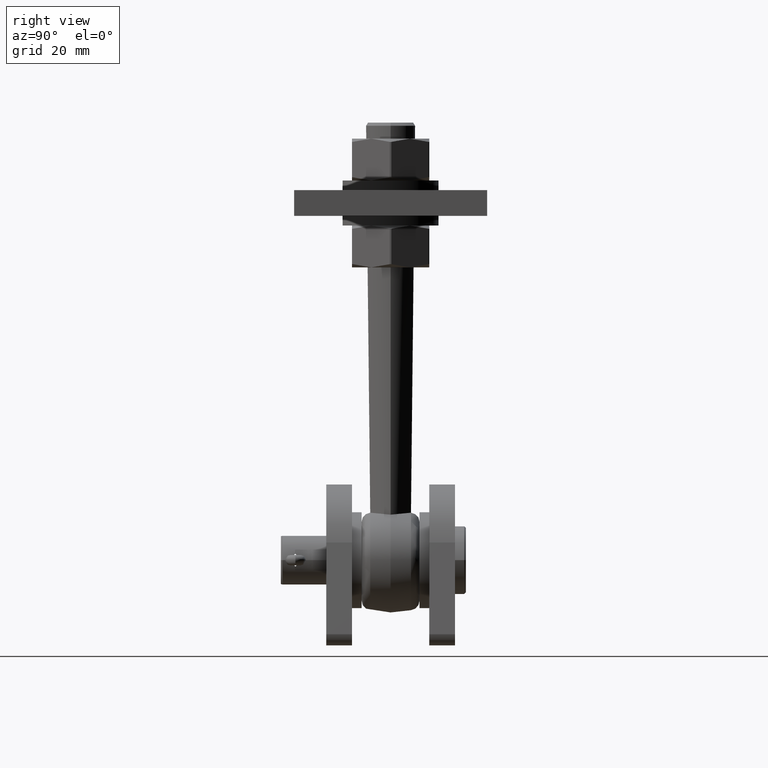
[diagram: clean part render]
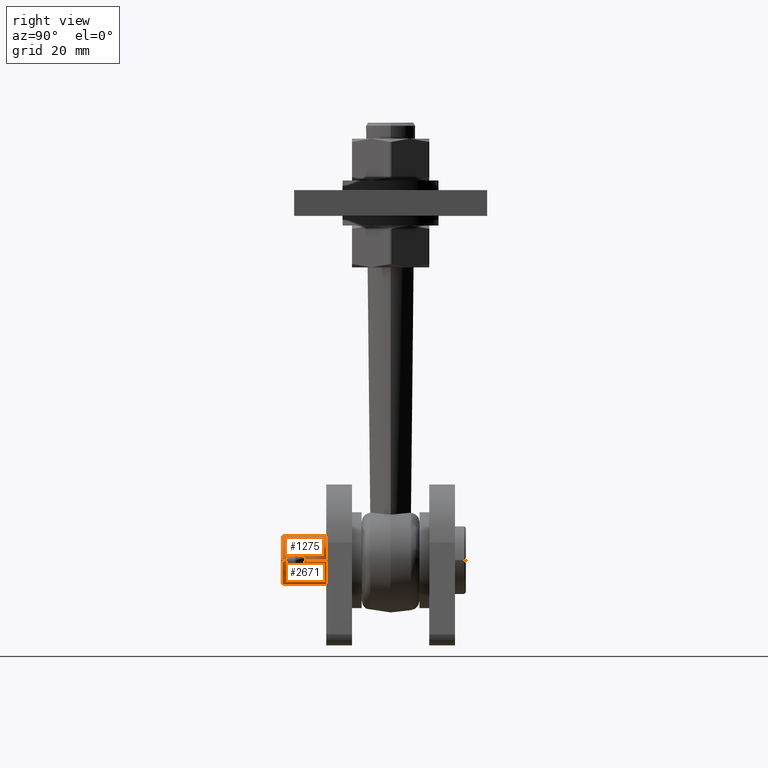
[diagram: same view with one multi-face feature highlighted, each face labeled with its STEP entity id]
A machine part, right view. The highlighted faces form ONE feature: a constant-radius fillet chain: 2 tangent blend faces with common blend radius 7.95 mm. The faces share edges in the B-rep.
Their STEP definitions:
[1] entity #2671 (Cylinder):
#225 = B_SPLINE_CURVE_WITH_KNOTS ( 'NONE', 3,
 ( #7395, #12804, #10145, #15399, #10084, #7621, #16836, #8911, #10022, #2149, #4853, #8731, #11425, #3618, #7509, #975 ),
 .UNSPECIFIED., .F., .F.,
 ( 4, 2, 2, 2, 2, 2, 2, 4 ),
 ( 0.000000000000000000, 0.0003924877562753158753, 0.0007849755125506317505, 0.001177463268825947734, 0.001569951025101263501, 0.002354926537651896336, 0.002747414293927212536, 0.003139902050202529171 ),
 .UNSPECIFIED. ) ;
#290 = EDGE_CURVE ( 'NONE', #7963, #8207, #2308, .T. ) ;
#509 = CARTESIAN_POINT ( 'NONE',  ( -7.924562263214649072, 51.10300705417512290, -0.6469902090679084949 ) ) ;
#712 = VECTOR ( 'NONE', #5024, 1000.000000000000000 ) ;
#793 = CARTESIAN_POINT ( 'NONE',  ( -6.155181303540645707E-17, 3.399999999999986144, 0.000000000000000000 ) ) ;
#975 = CARTESIAN_POINT ( 'NONE',  ( 7.949999999999996625, 50.99999999999999289, 9.735942011271064583E-16 ) ) ;
#989 = CARTESIAN_POINT ( 'NONE',  ( -7.924652939465393509, 54.89736543780418998, -0.6458169674437546082 ) ) ;
#1361 = CIRCLE ( 'NONE', #3256, 7.949999999999998401 ) ;
#1451 = EDGE_CURVE ( 'NONE', #16601, #11361, #9019, .T. ) ;
#1811 = CARTESIAN_POINT ( 'NONE',  ( -7.789854683842819760, 51.77035370459633867, -1.598591673012550451 ) ) ;
#2149 = CARTESIAN_POINT ( 'NONE',  ( 7.856525745292255003, 51.40152417780861072, -1.229794777435625930 ) ) ;
#2221 = CARTESIAN_POINT ( 'NONE',  ( -7.694316083967438047, 53.13101008473957165, -2.000000000000000000 ) ) ;
#2299 = EDGE_CURVE ( 'NONE', #5688, #7342, #7743, .T. ) ;
#2308 = LINE ( 'NONE', #9807, #9833 ) ;
#2323 = CYLINDRICAL_SURFACE ( 'NONE', #12148, 7.949999999999998401 ) ;
#2574 = CARTESIAN_POINT ( 'NONE',  ( -7.950000000000000178, 56.99999999999999289, 4.781931009508440246E-45 ) ) ;
#2671 = ADVANCED_FACE ( 'NONE', ( #9450 ), #2323, .T. ) ;
#2778 = CARTESIAN_POINT ( 'NONE',  ( -7.950000000000000178, 57.49999999999999289, 0.000000000000000000 ) ) ;
#2797 = CIRCLE ( 'NONE', #16717, 7.949999999999998401 ) ;
#2925 = EDGE_CURVE ( 'NONE', #9834, #8207, #225, .T. ) ;
#3142 = CARTESIAN_POINT ( 'NONE',  ( -7.756275060307692648, 51.99272894526373534, -1.747350824639221090 ) ) ;
#3198 = CARTESIAN_POINT ( 'NONE',  ( 7.694316083967436271, 52.99999999999999289, -2.000000000000000000 ) ) ;
#3256 = AXIS2_PLACEMENT_3D ( 'NONE', #793, #16541, #5996 ) ;
#3578 = CARTESIAN_POINT ( 'NONE',  ( -7.887057119366368774, 54.73440801061883576, -1.004364273485758963 ) ) ;
#3618 = CARTESIAN_POINT ( 'NONE',  ( 7.946759577746048464, 51.01276329415418331, -0.2612694808737476282 ) ) ;
#3668 = ORIENTED_EDGE ( 'NONE', *, *, #8885, .T. ) ;
#3796 = CARTESIAN_POINT ( 'NONE',  ( -7.840053064387095816, 54.50738857282056671, -1.320958535354597396 ) ) ;
#4200 = DIRECTION ( 'NONE',  ( -1.810347442217834798E-17, 1.000000000000000000, -1.751623080406021339E-46 ) ) ;
#4386 = CARTESIAN_POINT ( 'NONE',  ( -7.934038809997753461, 51.06426070710008247, -0.5196230671490993380 ) ) ;
#4564 = EDGE_CURVE ( 'NONE', #5688, #9834, #11043, .T. ) ;
#4853 = CARTESIAN_POINT ( 'NONE',  ( 7.889620371743871985, 51.25270485879534732, -1.007379851174479368 ) ) ;
#5024 = DIRECTION ( 'NONE',  ( -1.810347442217834798E-17, 1.000000000000000000, -1.751623080406021339E-46 ) ) ;
#5032 = EDGE_CURVE ( 'NONE', #11361, #11368, #14027, .T. ) ;
#5090 = CARTESIAN_POINT ( 'NONE',  ( -7.950000000000000178, 54.99999999999999289, 2.113235302785876149E-21 ) ) ;
#5215 = CARTESIAN_POINT ( 'NONE',  ( 7.694316083967436271, 52.99999999999999289, -2.000000000000000000 ) ) ;
#5390 = CARTESIAN_POINT ( 'NONE',  ( 7.697747731779690739, 53.26338999103940353, -1.986928966165530719 ) ) ;
#5688 = VERTEX_POINT ( 'NONE', #8208 ) ;
#5741 = CARTESIAN_POINT ( 'NONE',  ( -7.856474091491604916, 51.41043274181383538, -1.220790165378973002 ) ) ;
#5792 = CARTESIAN_POINT ( 'NONE',  ( -7.950000000000000178, 50.99999999999999289, 2.033804946921594182E-32 ) ) ;
#5850 = ORIENTED_EDGE ( 'NONE', *, *, #2925, .T. ) ;
#5956 = CARTESIAN_POINT ( 'NONE',  ( -7.901070480466282575, 51.20366765039445767, -0.8890268032515739050 ) ) ;
#5996 = DIRECTION ( 'NONE',  ( -1.000000000000000000, 0.000000000000000000, 0.000000000000000000 ) ) ;
#6302 = CARTESIAN_POINT ( 'NONE',  ( -7.694316083967438047, 52.99999999999999289, -2.000000000000000000 ) ) ;
#6591 = CARTESIAN_POINT ( 'NONE',  ( 7.949999999999996625, 54.99999999999999289, 9.970668762862890007E-16 ) ) ;
#7129 = CARTESIAN_POINT ( 'NONE',  ( -7.946679383968100474, 51.01308580882071197, -0.2631857497670406221 ) ) ;
#7298 = ORIENTED_EDGE ( 'NONE', *, *, #5032, .T. ) ;
#7342 = VERTEX_POINT ( 'NONE', #16225 ) ;
#7343 = CARTESIAN_POINT ( 'NONE',  ( -7.694316083967438047, 52.99999999999999289, -2.000000000000000000 ) ) ;
#7395 = CARTESIAN_POINT ( 'NONE',  ( 7.694316083967436271, 52.99999999999999289, -2.000000000000000000 ) ) ;
#7509 = CARTESIAN_POINT ( 'NONE',  ( 7.949999999999998401, 51.00000000000000000, -0.1310877583516862066 ) ) ;
#7583 = CARTESIAN_POINT ( 'NONE',  ( -7.933949495009511743, 54.93537538977241041, -0.5211252135628732240 ) ) ;
#7621 = CARTESIAN_POINT ( 'NONE',  ( 7.744560864505316111, 52.11105754919763200, -1.796372218728887304 ) ) ;
#7638 = CARTESIAN_POINT ( 'NONE',  ( -7.697779523048308370, 53.26412105849664158, -1.986804987694983593 ) ) ;
#7743 = LINE ( 'NONE', #13028, #712 ) ;
#7821 = CARTESIAN_POINT ( 'NONE',  ( 7.856457370671384943, 54.59811386517233700, -1.230190434756748274 ) ) ;
#7867 = CARTESIAN_POINT ( 'NONE',  ( 7.720662977664924043, 53.64843706785656963, -1.896448257276839522 ) ) ;
#7928 = CARTESIAN_POINT ( 'NONE',  ( 7.949999999999996625, 55.00000000000000711, -0.1318761416938723785 ) ) ;
#7963 = VERTEX_POINT ( 'NONE', #14231 ) ;
#7981 = CARTESIAN_POINT ( 'NONE',  ( 7.756548665258978126, 54.00939707829432024, -1.746156932330575229 ) ) ;
#8185 = CARTESIAN_POINT ( 'NONE',  ( 7.949999999999996625, 50.99999999999999289, 9.735942011271064583E-16 ) ) ;
#8207 = VERTEX_POINT ( 'NONE', #8185 ) ;
#8208 = CARTESIAN_POINT ( 'NONE',  ( 7.949999999999996625, 54.99999999999999289, 9.970668762862890007E-16 ) ) ;
#8662 = EDGE_CURVE ( 'NONE', #11368, #7342, #2797, .T. ) ;
#8731 = CARTESIAN_POINT ( 'NONE',  ( 7.924590656622680029, 51.10289832900503626, -0.6465051188239416824 ) ) ;
#8751 = VECTOR ( 'NONE', #17005, 1000.000000000000000 ) ;
#8885 = EDGE_CURVE ( 'NONE', #7963, #12870, #1361, .T. ) ;
#8911 = CARTESIAN_POINT ( 'NONE',  ( 7.789801119753567704, 51.77932916537322683, -1.589657593870339003 ) ) ;
#9019 = B_SPLINE_CURVE_WITH_KNOTS ( 'NONE', 3,
 ( #6302, #2221, #7638, #14419, #14199, #16913, #16973, #3796, #11553, #3578, #12876, #989, #7583, #13037, #16857, #5090 ),
 .UNSPECIFIED., .F., .F.,
 ( 4, 2, 2, 2, 2, 2, 2, 4 ),
 ( 0.003139949354440633479, 0.003532233271773319201, 0.003924517189106004923, 0.004709085023771358153, 0.005101368941104034334, 0.005493652858436710515, 0.005885936775769387563, 0.006278220693102063744 ),
 .UNSPECIFIED. ) ;
#9032 = VERTEX_POINT ( 'NONE', #10467 ) ;
#9353 = CARTESIAN_POINT ( 'NONE',  ( 7.946721702098886730, 54.98708314764281369, -0.2620080763964702797 ) ) ;
#9450 = FACE_OUTER_BOUND ( 'NONE', #12408, .T. ) ;
#9721 = ORIENTED_EDGE ( 'NONE', *, *, #4564, .T. ) ;
#9807 = CARTESIAN_POINT ( 'NONE',  ( 7.949999999999996625, 57.49999999999999289, 9.735942053221456900E-16 ) ) ;
#9833 = VECTOR ( 'NONE', #15298, 1000.000000000000000 ) ;
#9834 = VERTEX_POINT ( 'NONE', #3198 ) ;
#9857 = CARTESIAN_POINT ( 'NONE',  ( -7.710771477009589425, 52.48022943558717657, -1.935770746015894384 ) ) ;
#9874 = EDGE_CURVE ( 'NONE', #9032, #16601, #9920, .T. ) ;
#9920 = B_SPLINE_CURVE_WITH_KNOTS ( 'NONE', 3,
 ( #5792, #12578, #7129, #4386, #509, #5956, #16555, #5741, #15007, #1811, #3142, #12461, #9857, #11200, #12523, #7343 ),
 .UNSPECIFIED., .F., .F.,
 ( 4, 2, 2, 2, 2, 2, 2, 4 ),
 ( 0.000000000000000000, 0.0003924936693050754986, 0.0007849873386101509972, 0.001177481007915226604, 0.001569974677220301994, 0.002354962015830467954, 0.002747455685135550500, 0.003139949354440633479 ),
 .UNSPECIFIED. ) ;
#10022 = CARTESIAN_POINT ( 'NONE',  ( 7.806704201482631333, 51.67701567228889559, -1.505520675984033829 ) ) ;
#10075 = ORIENTED_EDGE ( 'NONE', *, *, #1451, .T. ) ;
#10084 = CARTESIAN_POINT ( 'NONE',  ( 7.720527735809659120, 52.35305006668411210, -1.897004905856085388 ) ) ;
#10145 = CARTESIAN_POINT ( 'NONE',  ( 7.697750976697985692, 52.73681746508850665, -1.986913910411575390 ) ) ;
#10340 = DIRECTION ( 'NONE',  ( 1.000000000000000000, 0.000000000000000000, 0.000000000000000000 ) ) ;
#10467 = CARTESIAN_POINT ( 'NONE',  ( -7.950000000000000178, 50.99999999999999289, 2.033804946921594182E-32 ) ) ;
#10564 = CARTESIAN_POINT ( 'NONE',  ( 7.934091679746535952, 54.93595568328925793, -0.5188672856166262060 ) ) ;
#10574 = CARTESIAN_POINT ( 'NONE',  ( -7.950000000000000178, 54.99999999999999289, 2.113235302785876149E-21 ) ) ;
#11043 = B_SPLINE_CURVE_WITH_KNOTS ( 'NONE', 3,
 ( #6591, #7928, #9353, #10564, #15159, #13333, #7821, #11850, #7981, #7867, #14608, #5390, #14660, #5215 ),
 .UNSPECIFIED., .F., .F.,
 ( 4, 2, 2, 2, 2, 2, 4 ),
 ( 0.009416982646506867963, 0.009809188363616664491, 0.01020139408072645928, 0.01098580551494604367, 0.01177021694916562805, 0.01216242266627542978, 0.01255462838338523152 ),
 .UNSPECIFIED. ) ;
#11200 = CARTESIAN_POINT ( 'NONE',  ( -7.697667790944767496, 52.73874516518576883, -1.987238217236958926 ) ) ;
#11341 = ORIENTED_EDGE ( 'NONE', *, *, #15504, .T. ) ;
#11361 = VERTEX_POINT ( 'NONE', #10574 ) ;
#11368 = VERTEX_POINT ( 'NONE', #2574 ) ;
#11425 = CARTESIAN_POINT ( 'NONE',  ( 7.934044409353276706, 51.06423590586242511, -0.5197969204840001689 ) ) ;
#11438 = ORIENTED_EDGE ( 'NONE', *, *, #9874, .T. ) ;
#11553 = CARTESIAN_POINT ( 'NONE',  ( -7.856505035837110462, 54.58970831327162898, -1.220551604754334996 ) ) ;
#11850 = CARTESIAN_POINT ( 'NONE',  ( 7.790118874364078572, 54.23125853727104584, -1.597291096269006561 ) ) ;
#12051 = ORIENTED_EDGE ( 'NONE', *, *, #8662, .T. ) ;
#12148 = AXIS2_PLACEMENT_3D ( 'NONE', #13610, #4200, #13439 ) ;
#12376 = CARTESIAN_POINT ( 'NONE',  ( -7.694316083967438047, 52.99999999999999289, -2.000000000000000000 ) ) ;
#12408 = EDGE_LOOP ( 'NONE', ( #14052, #3668, #11341, #11438, #10075, #7298, #12051, #13431, #9721, #5850 ) ) ;
#12461 = CARTESIAN_POINT ( 'NONE',  ( -7.720497554938354767, 52.35354386270315530, -1.897116742077429974 ) ) ;
#12523 = CARTESIAN_POINT ( 'NONE',  ( -7.694316083967436271, 52.86891986491556850, -2.000000000000000000 ) ) ;
#12578 = CARTESIAN_POINT ( 'NONE',  ( -7.950000000000000178, 51.00000000000000000, -0.1327545449306079817 ) ) ;
#12597 = CARTESIAN_POINT ( 'NONE',  ( -7.949999999999998401, 3.399999999999986144, 0.000000000000000000 ) ) ;
#12707 = LINE ( 'NONE', #13016, #8751 ) ;
#12804 = CARTESIAN_POINT ( 'NONE',  ( 7.694316083967430941, 52.86724334183054452, -2.000000000000000444 ) ) ;
#12870 = VERTEX_POINT ( 'NONE', #12597 ) ;
#12876 = CARTESIAN_POINT ( 'NONE',  ( -7.901270187472600348, 54.79720393084362229, -0.8872052699192171099 ) ) ;
#13016 = CARTESIAN_POINT ( 'NONE',  ( -7.950000000000000178, 57.49999999999999289, 0.000000000000000000 ) ) ;
#13028 = CARTESIAN_POINT ( 'NONE',  ( 7.949999999999996625, 57.49999999999999289, 9.735942053221456900E-16 ) ) ;
#13037 = CARTESIAN_POINT ( 'NONE',  ( -7.946676334210183157, 54.98690414229555756, -0.2635551495919991605 ) ) ;
#13251 = DIRECTION ( 'NONE',  ( -1.810347442217834798E-17, 1.000000000000000000, -1.751623080406021339E-46 ) ) ;
#13333 = CARTESIAN_POINT ( 'NONE',  ( 7.889527869177531016, 54.74689289461773711, -1.008245214644405863 ) ) ;
#13431 = ORIENTED_EDGE ( 'NONE', *, *, #2299, .F. ) ;
#13439 = DIRECTION ( 'NONE',  ( -1.000000000000000000, 0.000000000000000000, 0.000000000000000000 ) ) ;
#13610 = CARTESIAN_POINT ( 'NONE',  ( -1.040949779275254084E-15, 57.49999999999999289, 0.000000000000000000 ) ) ;
#14027 = LINE ( 'NONE', #2778, #16712 ) ;
#14052 = ORIENTED_EDGE ( 'NONE', *, *, #290, .F. ) ;
#14199 = CARTESIAN_POINT ( 'NONE',  ( -7.720431359289959161, 53.64586713597551437, -1.897399845491913428 ) ) ;
#14231 = CARTESIAN_POINT ( 'NONE',  ( 7.949999999999998401, 3.399999999999986144, 9.735942053221456900E-16 ) ) ;
#14381 = DIRECTION ( 'NONE',  ( 1.810347442217852054E-17, -1.000000000000000000, 1.751623080406021339E-46 ) ) ;
#14419 = CARTESIAN_POINT ( 'NONE',  ( -7.710866487856367968, 53.52097249603596651, -1.935391859816786964 ) ) ;
#14608 = CARTESIAN_POINT ( 'NONE',  ( 7.710864989283563453, 53.52104992872020262, -1.935398660676406202 ) ) ;
#14660 = CARTESIAN_POINT ( 'NONE',  ( 7.694316083967431830, 53.13266126009273194, -2.000000000000000444 ) ) ;
#15007 = CARTESIAN_POINT ( 'NONE',  ( -7.839679666637016986, 51.49459281933928878, -1.323113962446692105 ) ) ;
#15159 = CARTESIAN_POINT ( 'NONE',  ( 7.924596076609922157, 54.89712787500095459, -0.6464937164614490417 ) ) ;
#15298 = DIRECTION ( 'NONE',  ( -1.810347442217834798E-17, 1.000000000000000000, -1.751623080406021339E-46 ) ) ;
#15399 = CARTESIAN_POINT ( 'NONE',  ( 7.710777413707241124, 52.48040085530727339, -1.935744989120222304 ) ) ;
#15504 = EDGE_CURVE ( 'NONE', #12870, #9032, #12707, .T. ) ;
#16225 = CARTESIAN_POINT ( 'NONE',  ( 7.949999999999996625, 56.99999999999999289, 9.735942053221456900E-16 ) ) ;
#16541 = DIRECTION ( 'NONE',  ( -1.810347442217834798E-17, 1.000000000000000000, -1.751623080406021339E-46 ) ) ;
#16555 = CARTESIAN_POINT ( 'NONE',  ( -7.887143775885049557, 51.26518708227634136, -1.003731456457646276 ) ) ;
#16601 = VERTEX_POINT ( 'NONE', #12376 ) ;
#16712 = VECTOR ( 'NONE', #13251, 1000.000000000000000 ) ;
#16717 = AXIS2_PLACEMENT_3D ( 'NONE', #16987, #14381, #10340 ) ;
#16836 = CARTESIAN_POINT ( 'NONE',  ( 7.758752153202430613, 51.99637119609992197, -1.734871112284767092 ) ) ;
#16857 = CARTESIAN_POINT ( 'NONE',  ( -7.950000000000000178, 55.00000000000000000, -0.1308090633521638846 ) ) ;
#16913 = CARTESIAN_POINT ( 'NONE',  ( -7.756556953633049645, 54.00995629125966246, -1.746158759611766698 ) ) ;
#16973 = CARTESIAN_POINT ( 'NONE',  ( -7.789832132517102714, 54.22969007520354978, -1.598896295990056338 ) ) ;
#16987 = CARTESIAN_POINT ( 'NONE',  ( -1.031898042064167388E-15, 56.99999999999999289, 0.000000000000000000 ) ) ;
#17005 = DIRECTION ( 'NONE',  ( -1.810347442217834798E-17, 1.000000000000000000, -1.751623080406021339E-46 ) ) ;
[2] entity #1275 (Cylinder):
#290 = EDGE_CURVE ( 'NONE', #7963, #8207, #2308, .T. ) ;
#564 = CARTESIAN_POINT ( 'NONE',  ( -7.744590902109325548, 53.88929681845981889, 1.796250426453906979 ) ) ;
#622 = CARTESIAN_POINT ( 'NONE',  ( -7.950000000000000178, 54.99999999999999289, 2.113235302785876149E-21 ) ) ;
#712 = VECTOR ( 'NONE', #5024, 1000.000000000000000 ) ;
#716 = CARTESIAN_POINT ( 'NONE',  ( 7.887092505777772544, 54.73456603172354562, 1.004079766764621295 ) ) ;
#1271 = CARTESIAN_POINT ( 'NONE',  ( -1.031898042064167388E-15, 56.99999999999999289, 0.000000000000000000 ) ) ;
#1275 = ADVANCED_FACE ( 'NONE', ( #16402 ), #3550, .T. ) ;
#1373 = DIRECTION ( 'NONE',  ( 1.000000000000000000, 0.000000000000000000, 0.000000000000000000 ) ) ;
#1662 = CARTESIAN_POINT ( 'NONE',  ( 7.949999999999996625, 50.99999999999997158, 0.1310194815208184926 ) ) ;
#1750 = CARTESIAN_POINT ( 'NONE',  ( -7.887075975185781296, 54.73450639978707954, 1.004263173314736024 ) ) ;
#1803 = CARTESIAN_POINT ( 'NONE',  ( -7.697707530194250580, 52.73798828573675479, 1.987081904661341492 ) ) ;
#1889 = CIRCLE ( 'NONE', #6732, 7.949999999999998401 ) ;
#1998 = CARTESIAN_POINT ( 'NONE',  ( 7.936462486910293102, 54.94797760002165887, 0.5242786486983366245 ) ) ;
#2029 = CARTESIAN_POINT ( 'NONE',  ( -7.933954263415378350, 51.06460502737875373, 0.5210655787700830821 ) ) ;
#2042 = CARTESIAN_POINT ( 'NONE',  ( 7.697754669267080629, 52.73643651551044798, 1.986902030695572918 ) ) ;
#2056 = CARTESIAN_POINT ( 'NONE',  ( 7.839789496499784072, 54.50599868110666790, 1.322489299079199210 ) ) ;
#2174 = CARTESIAN_POINT ( 'NONE',  ( 7.949999999999996625, 54.99999999999999289, 9.970668762862890007E-16 ) ) ;
#2187 = ORIENTED_EDGE ( 'NONE', *, *, #7359, .T. ) ;
#2202 = ORIENTED_EDGE ( 'NONE', *, *, #13396, .T. ) ;
#2299 = EDGE_CURVE ( 'NONE', #5688, #7342, #7743, .T. ) ;
#2308 = LINE ( 'NONE', #9807, #9833 ) ;
#2330 = ORIENTED_EDGE ( 'NONE', *, *, #16637, .T. ) ;
#2557 = DIRECTION ( 'NONE',  ( 1.810347442217852054E-17, -1.000000000000000000, 1.751623080406021339E-46 ) ) ;
#2574 = CARTESIAN_POINT ( 'NONE',  ( -7.950000000000000178, 56.99999999999999289, 4.781931009508440246E-45 ) ) ;
#2778 = CARTESIAN_POINT ( 'NONE',  ( -7.950000000000000178, 57.49999999999999289, 0.000000000000000000 ) ) ;
#3045 = CARTESIAN_POINT ( 'NONE',  ( 7.889347318024901412, 51.25388495265607247, 1.010042887076920692 ) ) ;
#3146 = CARTESIAN_POINT ( 'NONE',  ( 7.924656850531029306, 51.10260959151734284, 0.6458991685022716922 ) ) ;
#3437 = CARTESIAN_POINT ( 'NONE',  ( -7.946682637520201986, 51.01307061334691184, 0.2633906791839861206 ) ) ;
#3462 = CARTESIAN_POINT ( 'NONE',  ( 7.856566816858836511, 54.59001046269535351, 1.220148443819275119 ) ) ;
#3550 = CYLINDRICAL_SURFACE ( 'NONE', #13675, 7.949999999999998401 ) ;
#3579 = ORIENTED_EDGE ( 'NONE', *, *, #13422, .T. ) ;
#3772 = EDGE_LOOP ( 'NONE', ( #15910, #8250, #2187, #2330, #15583, #8771, #15092, #2202, #3579, #12138 ) ) ;
#3859 = CARTESIAN_POINT ( 'NONE',  ( -7.694316083967436271, 52.99999999999999289, 2.000000000000003553 ) ) ;
#4393 = CARTESIAN_POINT ( 'NONE',  ( 7.806330506094356636, 51.67916635260444025, 1.507498826016771210 ) ) ;
#4434 = CARTESIAN_POINT ( 'NONE',  ( -7.856394206136461555, 54.58917429338763583, 1.221303417425163351 ) ) ;
#4450 = CARTESIAN_POINT ( 'NONE',  ( 7.949999999999996625, 50.99999999999999289, 9.735942011271064583E-16 ) ) ;
#4485 = CARTESIAN_POINT ( 'NONE',  ( -7.936281013652445537, 54.94718115219279042, 0.5258676678215030709 ) ) ;
#4540 = CARTESIAN_POINT ( 'NONE',  ( -7.694316083967436271, 52.99999999999999289, 2.000000000000003553 ) ) ;
#4603 = CARTESIAN_POINT ( 'NONE',  ( -7.756372067627395950, 51.99184264170494174, 1.746937719133370814 ) ) ;
#4633 = CARTESIAN_POINT ( 'NONE',  ( 7.744368394661253596, 53.88719080215257407, 1.797192405122824521 ) ) ;
#4662 = CARTESIAN_POINT ( 'NONE',  ( -7.950000000000000178, 50.99999999999999289, 2.033804946921594182E-32 ) ) ;
#4783 = CARTESIAN_POINT ( 'NONE',  ( -7.950000000000001954, 50.99999999999998579, 0.1326576613441784458 ) ) ;
#5024 = DIRECTION ( 'NONE',  ( -1.810347442217834798E-17, 1.000000000000000000, -1.751623080406021339E-46 ) ) ;
#5032 = EDGE_CURVE ( 'NONE', #11361, #11368, #14027, .T. ) ;
#5049 = DIRECTION ( 'NONE',  ( -1.810347442217834798E-17, 1.000000000000000000, -1.751623080406021339E-46 ) ) ;
#5502 = B_SPLINE_CURVE_WITH_KNOTS ( 'NONE', 3,
 ( #622, #13664, #4485, #5840, #1750, #4434, #16428, #5951, #13783, #8499, #564, #7123, #12516, #4540 ),
 .UNSPECIFIED., .F., .F.,
 ( 4, 2, 2, 2, 2, 2, 4 ),
 ( 0.006278220693102063744, 0.007062938076252375449, 0.007455296767827530868, 0.007847655459402688022, 0.008240014150977843441, 0.008632372842553000594, 0.009417090225703313167 ),
 .UNSPECIFIED. ) ;
#5688 = VERTEX_POINT ( 'NONE', #8208 ) ;
#5747 = CARTESIAN_POINT ( 'NONE',  ( 7.789768463635916795, 51.77957567417433893, 1.589804492314852880 ) ) ;
#5796 = CARTESIAN_POINT ( 'NONE',  ( 7.720434315983274232, 52.35422511576941673, 1.897378144461590033 ) ) ;
#5840 = CARTESIAN_POINT ( 'NONE',  ( -7.901259962995902164, 54.79715706903729711, 0.8872650562757913306 ) ) ;
#5951 = CARTESIAN_POINT ( 'NONE',  ( -7.806594591758594603, 54.32236212794126828, 1.506110057461228724 ) ) ;
#6018 = VERTEX_POINT ( 'NONE', #12912 ) ;
#6130 = CARTESIAN_POINT ( 'NONE',  ( 7.694316083967435382, 52.86919250298892337, 2.000000000000003109 ) ) ;
#6732 = AXIS2_PLACEMENT_3D ( 'NONE', #1271, #2557, #1373 ) ;
#7080 = CARTESIAN_POINT ( 'NONE',  ( 7.758839563100941916, 51.99574197341976145, 1.734468124498323549 ) ) ;
#7123 = CARTESIAN_POINT ( 'NONE',  ( -7.708352393146889803, 53.52425087323373987, 1.947978112132702666 ) ) ;
#7305 = CARTESIAN_POINT ( 'NONE',  ( 7.758822143950365735, 54.00416771873706523, 1.734559664370985299 ) ) ;
#7342 = VERTEX_POINT ( 'NONE', #16225 ) ;
#7359 = EDGE_CURVE ( 'NONE', #8207, #6018, #12822, .T. ) ;
#7743 = LINE ( 'NONE', #13028, #712 ) ;
#7748 = AXIS2_PLACEMENT_3D ( 'NONE', #11625, #5049, #14319 ) ;
#7963 = VERTEX_POINT ( 'NONE', #14231 ) ;
#8185 = CARTESIAN_POINT ( 'NONE',  ( 7.949999999999996625, 50.99999999999999289, 9.735942011271064583E-16 ) ) ;
#8207 = VERTEX_POINT ( 'NONE', #8185 ) ;
#8208 = CARTESIAN_POINT ( 'NONE',  ( 7.949999999999996625, 54.99999999999999289, 9.970668762862890007E-16 ) ) ;
#8250 = ORIENTED_EDGE ( 'NONE', *, *, #290, .T. ) ;
#8404 = CARTESIAN_POINT ( 'NONE',  ( 7.744357194706142700, 52.11287682203219873, 1.797242746903105592 ) ) ;
#8499 = CARTESIAN_POINT ( 'NONE',  ( -7.758802861610893054, 54.00396850425526907, 1.734629232997739967 ) ) ;
#8643 = CARTESIAN_POINT ( 'NONE',  ( 7.806446714378374452, 54.32149270996688273, 1.506873249871536036 ) ) ;
#8751 = VECTOR ( 'NONE', #17005, 1000.000000000000000 ) ;
#8771 = ORIENTED_EDGE ( 'NONE', *, *, #9574, .T. ) ;
#9032 = VERTEX_POINT ( 'NONE', #10467 ) ;
#9574 = EDGE_CURVE ( 'NONE', #7342, #11368, #1889, .T. ) ;
#9671 = VERTEX_POINT ( 'NONE', #3859 ) ;
#9792 = CARTESIAN_POINT ( 'NONE',  ( -7.694316083967436271, 52.99999999999999289, 2.000000000000003553 ) ) ;
#9807 = CARTESIAN_POINT ( 'NONE',  ( 7.949999999999996625, 57.49999999999999289, 9.735942053221456900E-16 ) ) ;
#9833 = VECTOR ( 'NONE', #15298, 1000.000000000000000 ) ;
#9906 = CARTESIAN_POINT ( 'NONE',  ( -7.694316083967433606, 52.86811699481697957, 2.000000000000002220 ) ) ;
#10168 = CARTESIAN_POINT ( 'NONE',  ( 7.789880191863094439, 54.22117367703371826, 1.589271810338418689 ) ) ;
#10467 = CARTESIAN_POINT ( 'NONE',  ( -7.950000000000000178, 50.99999999999999289, 2.033804946921594182E-32 ) ) ;
#10574 = CARTESIAN_POINT ( 'NONE',  ( -7.950000000000000178, 54.99999999999999289, 2.113235302785876149E-21 ) ) ;
#10980 = CARTESIAN_POINT ( 'NONE',  ( 7.933952605931474444, 51.06461255670861732, 0.5209900431290097611 ) ) ;
#11039 = CARTESIAN_POINT ( 'NONE',  ( 7.946651489141573599, 51.01319590991990083, 0.2641300594980733329 ) ) ;
#11141 = CARTESIAN_POINT ( 'NONE',  ( -7.720492980538239181, 52.35354407385830200, 1.897139398926747766 ) ) ;
#11361 = VERTEX_POINT ( 'NONE', #10574 ) ;
#11368 = VERTEX_POINT ( 'NONE', #2574 ) ;
#11373 = CARTESIAN_POINT ( 'NONE',  ( -7.924430728953867131, 51.10356211025687401, 0.6484721958710593093 ) ) ;
#11391 = CARTESIAN_POINT ( 'NONE',  ( -1.040949779275254084E-15, 57.49999999999999289, 0.000000000000000000 ) ) ;
#11454 = CARTESIAN_POINT ( 'NONE',  ( 7.901040225096759073, 54.79620617402625271, 0.8893900091111657247 ) ) ;
#11537 = CIRCLE ( 'NONE', #7748, 7.949999999999998401 ) ;
#11625 = CARTESIAN_POINT ( 'NONE',  ( -6.155181303540645707E-17, 3.399999999999986144, 0.000000000000000000 ) ) ;
#12138 = ORIENTED_EDGE ( 'NONE', *, *, #15504, .F. ) ;
#12172 = B_SPLINE_CURVE_WITH_KNOTS ( 'NONE', 3,
 ( #15368, #12600, #16696, #4633, #7305, #10168, #8643, #2056, #3462, #716, #11454, #1998, #15427, #2174 ),
 .UNSPECIFIED., .F., .F.,
 ( 4, 2, 2, 2, 2, 2, 4 ),
 ( 0.006278168687885049039, 0.007062872177540506155, 0.007455223922368234279, 0.007847575667195964139, 0.008239927412023690528, 0.008632279156851420387, 0.009416982646506867963 ),
 .UNSPECIFIED. ) ;
#12364 = CARTESIAN_POINT ( 'NONE',  ( 7.856556593071495342, 51.40118677920587942, 1.229802107312459203 ) ) ;
#12516 = CARTESIAN_POINT ( 'NONE',  ( -7.694316083967432718, 53.26386787122140731, 2.000000000000002665 ) ) ;
#12518 = EDGE_CURVE ( 'NONE', #12870, #7963, #11537, .T. ) ;
#12574 = CARTESIAN_POINT ( 'NONE',  ( -7.710723360724213826, 52.48115159861475121, 1.935959961007375663 ) ) ;
#12597 = CARTESIAN_POINT ( 'NONE',  ( -7.949999999999998401, 3.399999999999986144, 0.000000000000000000 ) ) ;
#12600 = CARTESIAN_POINT ( 'NONE',  ( 7.694316083967436271, 53.26166062028043768, 2.000000000000002665 ) ) ;
#12707 = LINE ( 'NONE', #13016, #8751 ) ;
#12805 = CARTESIAN_POINT ( 'NONE',  ( -7.789926930447180098, 51.76993648824963401, 1.598210710566971615 ) ) ;
#12822 = B_SPLINE_CURVE_WITH_KNOTS ( 'NONE', 3,
 ( #4450, #1662, #11039, #10980, #3146, #3045, #12364, #4393, #5747, #7080, #8404, #5796, #16497, #2042, #6130, #15179 ),
 .UNSPECIFIED., .F., .F.,
 ( 4, 2, 2, 2, 2, 2, 2, 4 ),
 ( 0.003139902050202529171, 0.003532185379912847895, 0.003924468709623167052, 0.004709035369043804500, 0.005101318698754115852, 0.005493602028464426336, 0.005885885358174737687, 0.006278168687885049039 ),
 .UNSPECIFIED. ) ;
#12870 = VERTEX_POINT ( 'NONE', #12597 ) ;
#12912 = CARTESIAN_POINT ( 'NONE',  ( 7.694316083967434494, 52.99999999999999289, 2.000000000000002665 ) ) ;
#13016 = CARTESIAN_POINT ( 'NONE',  ( -7.950000000000000178, 57.49999999999999289, 0.000000000000000000 ) ) ;
#13028 = CARTESIAN_POINT ( 'NONE',  ( 7.949999999999996625, 57.49999999999999289, 9.735942053221456900E-16 ) ) ;
#13251 = DIRECTION ( 'NONE',  ( -1.810347442217834798E-17, 1.000000000000000000, -1.751623080406021339E-46 ) ) ;
#13396 = EDGE_CURVE ( 'NONE', #11361, #9671, #5502, .T. ) ;
#13422 = EDGE_CURVE ( 'NONE', #9671, #9032, #15695, .T. ) ;
#13664 = CARTESIAN_POINT ( 'NONE',  ( -7.950000000000001954, 55.00000000000000711, 0.2616679944057003215 ) ) ;
#13675 = AXIS2_PLACEMENT_3D ( 'NONE', #11391, #14080, #15415 ) ;
#13783 = CARTESIAN_POINT ( 'NONE',  ( -7.789706039572947383, 54.22002094045734566, 1.590106989592983577 ) ) ;
#14027 = LINE ( 'NONE', #2778, #16712 ) ;
#14080 = DIRECTION ( 'NONE',  ( -1.810347442217834798E-17, 1.000000000000000000, -1.751623080406021339E-46 ) ) ;
#14231 = CARTESIAN_POINT ( 'NONE',  ( 7.949999999999998401, 3.399999999999986144, 9.735942053221456900E-16 ) ) ;
#14319 = DIRECTION ( 'NONE',  ( -1.000000000000000000, 0.000000000000000000, 0.000000000000000000 ) ) ;
#15092 = ORIENTED_EDGE ( 'NONE', *, *, #5032, .F. ) ;
#15179 = CARTESIAN_POINT ( 'NONE',  ( 7.694316083967434494, 52.99999999999999289, 2.000000000000002665 ) ) ;
#15298 = DIRECTION ( 'NONE',  ( -1.810347442217834798E-17, 1.000000000000000000, -1.751623080406021339E-46 ) ) ;
#15368 = CARTESIAN_POINT ( 'NONE',  ( 7.694316083967434494, 52.99999999999999289, 2.000000000000002665 ) ) ;
#15415 = DIRECTION ( 'NONE',  ( -1.000000000000000000, 0.000000000000000000, 0.000000000000000000 ) ) ;
#15427 = CARTESIAN_POINT ( 'NONE',  ( 7.949999999999994849, 54.99999999999997868, 0.2638504847712646040 ) ) ;
#15457 = CARTESIAN_POINT ( 'NONE',  ( -7.856265708380494317, 51.40281324138074837, 1.231392779092833845 ) ) ;
#15504 = EDGE_CURVE ( 'NONE', #12870, #9032, #12707, .T. ) ;
#15583 = ORIENTED_EDGE ( 'NONE', *, *, #2299, .T. ) ;
#15695 = B_SPLINE_CURVE_WITH_KNOTS ( 'NONE', 3,
 ( #9792, #9906, #1803, #12574, #11141, #4603, #12805, #15457, #16840, #11373, #2029, #3437, #4783, #4662 ),
 .UNSPECIFIED., .F., .F.,
 ( 4, 2, 2, 2, 2, 2, 4 ),
 ( 0.009417090225703313167, 0.009809297455140348829, 0.01020150468457738449, 0.01098591914345143673, 0.01177033360232548724, 0.01216254083176251423, 0.01255474806119953948 ),
 .UNSPECIFIED. ) ;
#15910 = ORIENTED_EDGE ( 'NONE', *, *, #12518, .T. ) ;
#16225 = CARTESIAN_POINT ( 'NONE',  ( 7.949999999999996625, 56.99999999999999289, 9.735942053221456900E-16 ) ) ;
#16402 = FACE_OUTER_BOUND ( 'NONE', #3772, .T. ) ;
#16428 = CARTESIAN_POINT ( 'NONE',  ( -7.839935896344747412, 54.50675722534646894, 1.321624669286055820 ) ) ;
#16497 = CARTESIAN_POINT ( 'NONE',  ( 7.710869632047648636, 52.47889612881142796, 1.935380103589665612 ) ) ;
#16637 = EDGE_CURVE ( 'NONE', #6018, #5688, #12172, .T. ) ;
#16696 = CARTESIAN_POINT ( 'NONE',  ( 7.708537084859535149, 53.52583907941387054, 1.947183993458872386 ) ) ;
#16712 = VECTOR ( 'NONE', #13251, 1000.000000000000000 ) ;
#16840 = CARTESIAN_POINT ( 'NONE',  ( -7.889353351870015629, 51.25389190560181873, 1.009493911106796871 ) ) ;
#17005 = DIRECTION ( 'NONE',  ( -1.810347442217834798E-17, 1.000000000000000000, -1.751623080406021339E-46 ) ) ;